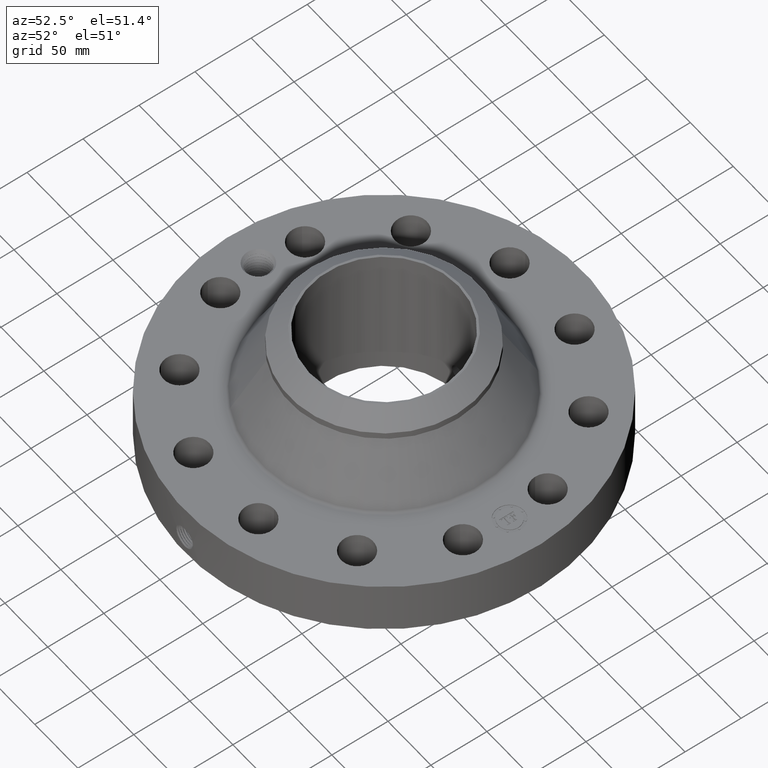
[diagram: clean part render]
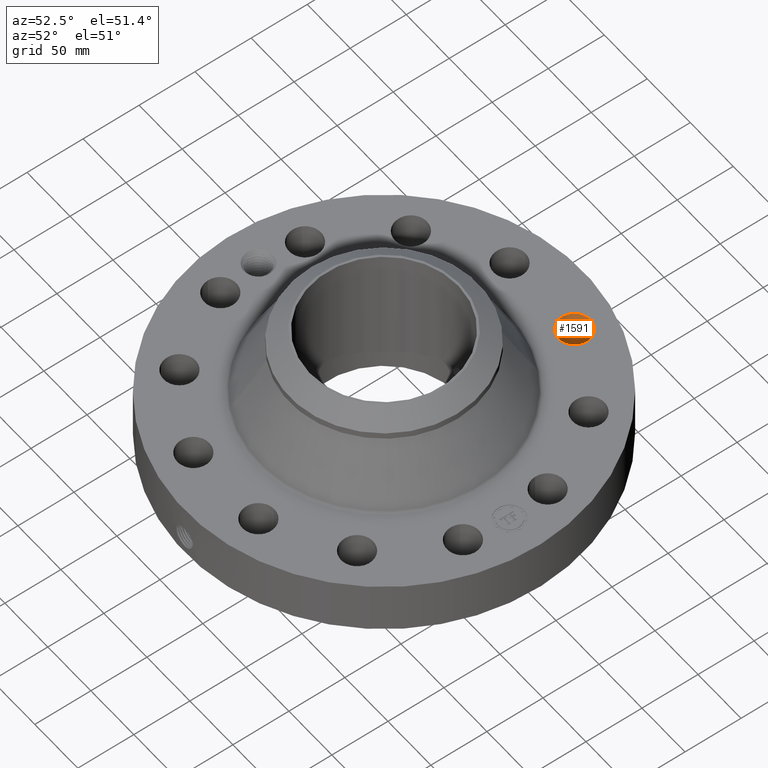
[diagram: same view with one face highlighted and labeled with its STEP entity id]
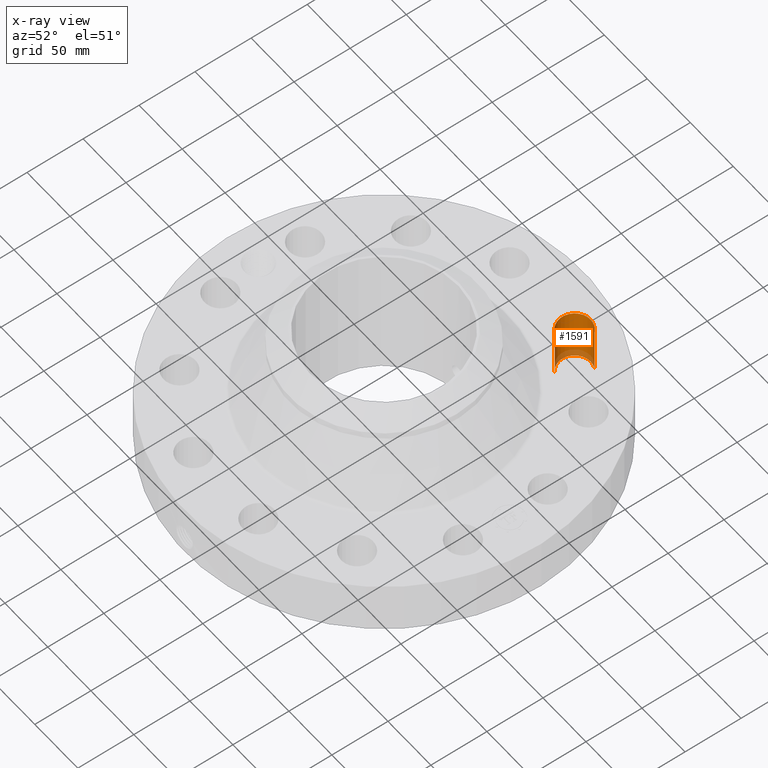
[diagram: x-ray of the same camera — body ghosted, the highlighted face saturated]
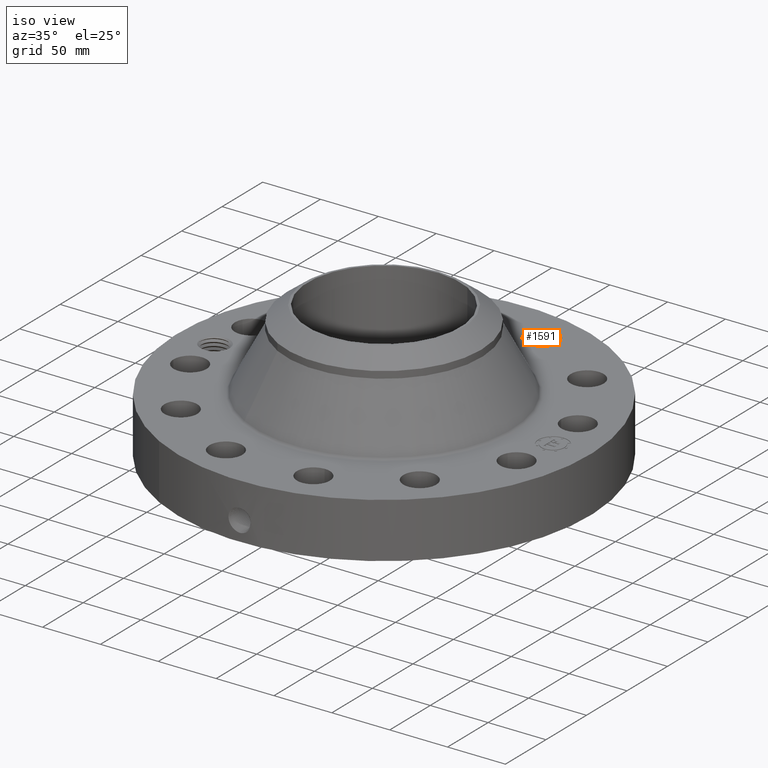
[diagram: same view with one face highlighted and labeled with its STEP entity id]
A machine part, auxiliary view. The second image highlights one B-rep face of the part: STEP entity #1591.
The next image is the same camera in x-ray: the body ghosted, the highlighted face saturated — about 14% of this face is hidden behind the body in this view.
A second angle (iso view) of the same face is appended — the face is thin or edge-on in the first view.
In plain terms, the highlighted cylindrical surface (edge-blend (fillet) strip) has radius 14.224 mm, axis along (0, 0, -1).
Its self-contained STEP definition (entity closure, byte-faithful):
#406=AXIS2_PLACEMENT_3D('Circle Axis2P3D',#404,#405,$) ;
#806=AXIS2_PLACEMENT_3D('Circle Axis2P3D',#804,#805,$) ;
#1573=AXIS2_PLACEMENT_3D('Cylinder Axis2P3D',#1570,#1571,#1572) ;
#404=CARTESIAN_POINT('Axis2P3D Location',(1.48820950935,5.55407350118,0.250000000001)) ;
#408=CARTESIAN_POINT('Vertex',(1.21973120773,5.06262726652,0.250000000001)) ;
#410=CARTESIAN_POINT('Vertex',(1.75668781096,6.04551973584,0.250000000001)) ;
#799=CARTESIAN_POINT('Vertex',(1.75668781096,6.04551973584,2.13000000001)) ;
#801=CARTESIAN_POINT('Vertex',(1.21973120773,5.06262726652,2.13000000001)) ;
#804=CARTESIAN_POINT('Axis2P3D Location',(1.48820950935,5.55407350118,2.13000000001)) ;
#1570=CARTESIAN_POINT('Axis2P3D Location',(1.48820950935,5.55407350118,2.12606299213)) ;
#1575=CARTESIAN_POINT('Line Origine',(1.21973120773,5.06262726652,1.19)) ;
#1580=CARTESIAN_POINT('Line Origine',(1.75668781096,6.04551973584,1.19)) ;
#405=DIRECTION('Axis2P3D Direction',(0.,0.,-0.0393700787402)) ;
#805=DIRECTION('Axis2P3D Direction',(0.,0.,-0.0393700787402)) ;
#1571=DIRECTION('Axis2P3D Direction',(0.,0.,-0.0393700787402)) ;
#1572=DIRECTION('Axis2P3D XDirection',(0.0188750212049,0.0345504945626,0.)) ;
#1576=DIRECTION('Vector Direction',(0.,0.,-0.0393700787402)) ;
#1581=DIRECTION('Vector Direction',(0.,0.,-0.0393700787402)) ;
#1577=VECTOR('Line Direction',#1576,0.0393700787402) ;
#1582=VECTOR('Line Direction',#1581,0.0393700787402) ;
#1586=ORIENTED_EDGE('',*,*,#1579,.F.) ;
#1587=ORIENTED_EDGE('',*,*,#412,.T.) ;
#1588=ORIENTED_EDGE('',*,*,#1584,.T.) ;
#1589=ORIENTED_EDGE('',*,*,#808,.F.) ;
#1591=ADVANCED_FACE('PartBody',(#1590),#1574,.F.) ;
#407=CIRCLE('generated circle',#406,0.560000000002) ;
#807=CIRCLE('generated circle',#806,0.560000000002) ;
#1574=CYLINDRICAL_SURFACE('generated cylinder',#1573,0.560000000002) ;
#412=EDGE_CURVE('',#409,#411,#407,.T.) ;
#808=EDGE_CURVE('',#802,#800,#807,.T.) ;
#1579=EDGE_CURVE('',#409,#802,#1578,.F.) ;
#1584=EDGE_CURVE('',#411,#800,#1583,.F.) ;
#1585=EDGE_LOOP('',(#1586,#1587,#1588,#1589)) ;
#1590=FACE_OUTER_BOUND('',#1585,.T.) ;
#1578=LINE('Line',#1575,#1577) ;
#1583=LINE('Line',#1580,#1582) ;
#409=VERTEX_POINT('',#408) ;
#411=VERTEX_POINT('',#410) ;
#800=VERTEX_POINT('',#799) ;
#802=VERTEX_POINT('',#801) ;